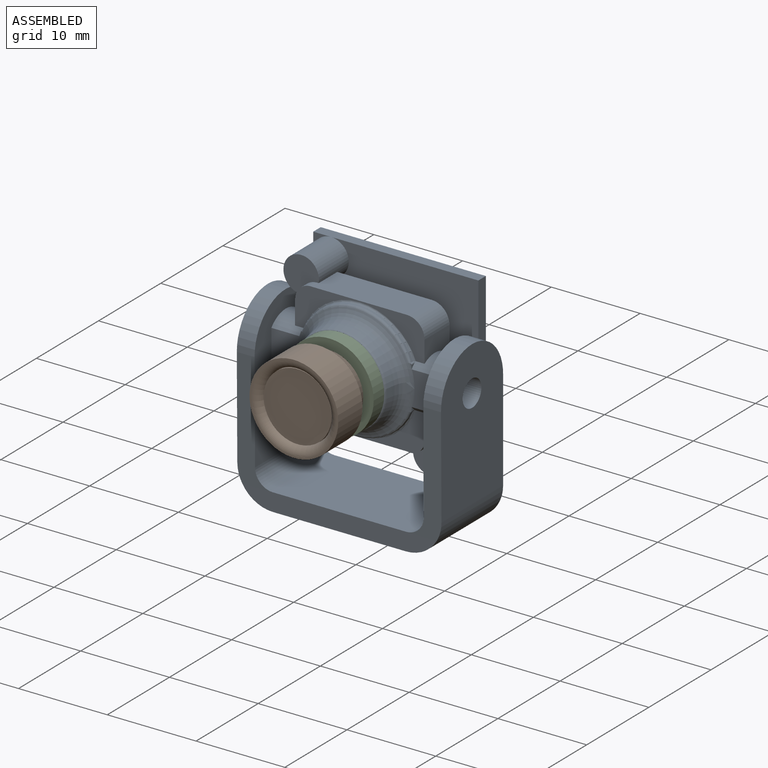
[diagram: assembled view]
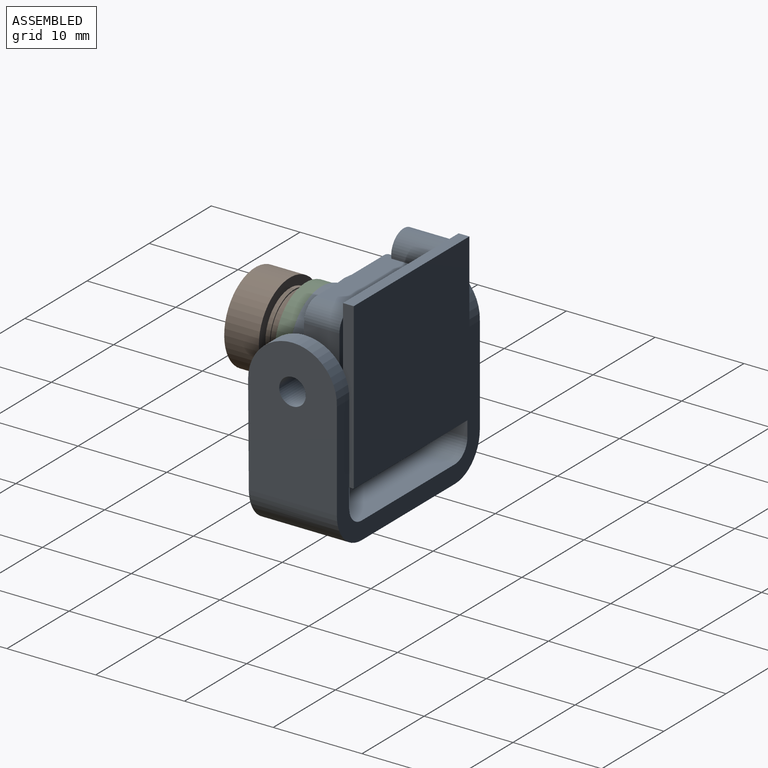
[diagram: assembled view, second angle]
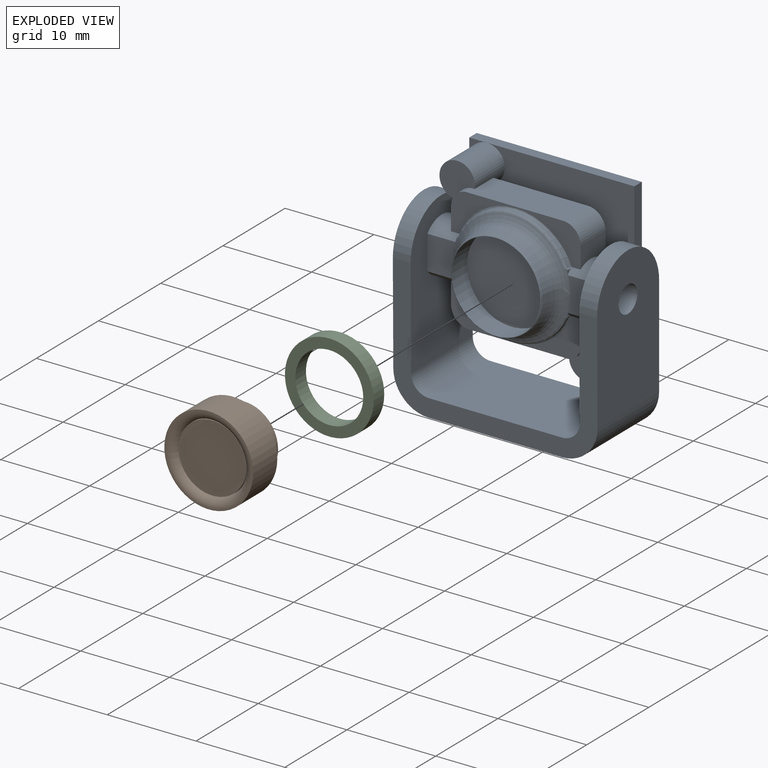
[diagram: exploded view]
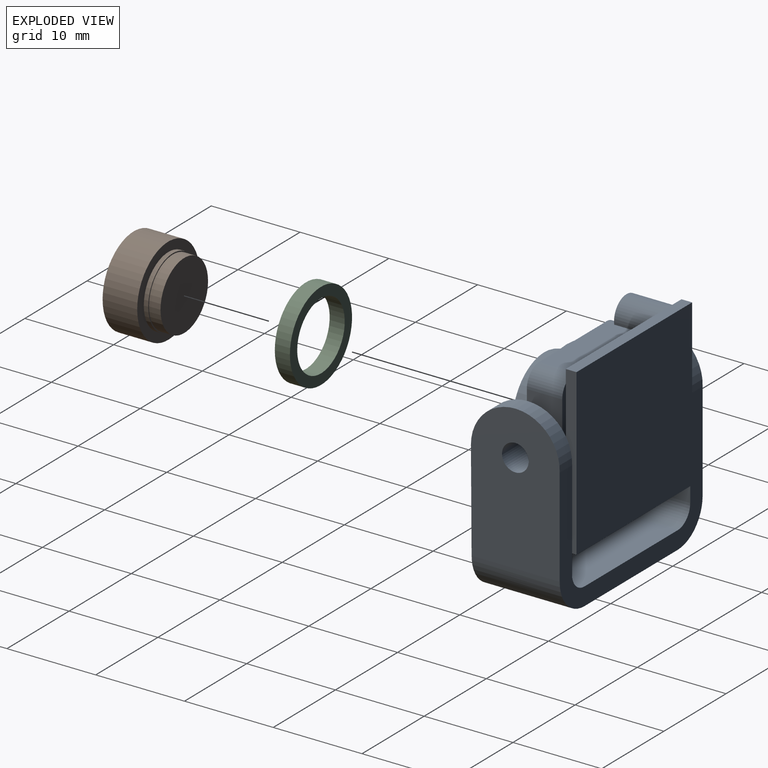
[diagram: exploded view, second angle]
ASSEMBLY  parts=3 mates=2
PART A: 93 faces, bbox 23x10.4x24.6 mm
  f0: cylinder r=1.6mm len=1.94mm, axis (0,-1,0), area 2.9mm2, adj f32,f51,f58,f62
  f1: cylinder r=1.76mm len=1.94mm, axis (0,-1,0), area 2.8mm2, adj f48,f56,f61,f68
  f2: cylinder r=0.15mm len=0.62mm, axis (0,-1,0), area 0.1mm2, adj f3,f4,f9,f30,f52
  f3: plane 0.63x0.28mm, normal (0,0,-1), area 0mm2, adj f2,f4,f8,f30,f36,f46
  f4: plane 0.45x0.17mm, normal (0,-1,0), area 0mm2, adj f2,f3,f8,f52
  f5: cylinder r=0.15mm len=0.62mm, axis (0,1,0), area 0.1mm2, adj f7,f10,f11,f16,f33
  f6: plane 1.03x0.01mm, normal (0,0,1), area 0mm2, adj f15,f16,f33,f48
  f7: plane 0.63x0.28mm, normal (0,0,1), area 0mm2, adj f5,f8,f11,f33,f34,f35
  f8: revolved ~13.25x13.25mm, area 108.2mm2, adj f3,f4,f7,f9,f10,f11,f12,f16
  f9: cylinder r=3mm len=3.28mm, axis (-1,0,0), area 6.6mm2, adj f2,f8,f12,f13,f14,f20,f30,f31
  f10: plane 0.45x0.44mm, normal (1,0,0), area 0.1mm2, adj f5,f8,f11,f16
  f11: plane 0.45x0.17mm, normal (0,-1,0), area 0mm2, adj f5,f7,f8,f10
  f12: plane 3.84x3.16mm, normal (0,-1,0), area 11.4mm2, adj f8,f9,f16,f69
  f13: plane 0.01x0.01mm, normal (-1,0,0), area 0mm2, adj f9,f20,f32
  f14: plane 3.99x3.08mm, normal (1,0,0), area 8.8mm2, adj f9,f18,f31,f32,f50,f51
  f15: plane 0.01x0.01mm, normal (-1,0,0), area 0mm2, adj f6,f16,f48
  f16: cylinder r=3mm len=3.28mm, axis (-1,0,0), area 6.6mm2, adj f5,f6,f8,f10,f12,f15,f19,f33
  f17: cylinder r=3mm len=2.33mm, axis (-1,0,0), area 5.9mm2, adj f19,f50,f53,f69
  f18: cylinder r=3mm len=2.33mm, axis (-1,0,0), area 5.9mm2, adj f14,f31,f50,f69
  f19: plane 2.2x0.04mm, normal (0,0,1), area 0.1mm2, adj f16,f17,f53,f69
  f20: plane 1.03x0.01mm, normal (0,0,-1), area 0mm2, adj f9,f13,f30,f32
  f21: cylinder r=1.5mm len=23mm, axis (1,0,0), area 216.8mm2, adj f73,f77
  f22: plane 0.58x0.44mm, normal (0,1,0), area 0.2mm2, adj f8,f27,f29,f45,f67
  f23: plane 0.58x0.44mm, normal (0,1,0), area 0.2mm2, adj f8,f25,f26,f38,f44
  f24: plane 1.03x0.01mm, normal (0,0,-1), area 0mm2, adj f26,f30,f32,f37
  f25: plane 0.67x0.4mm, normal (0,0,1), area 0.2mm2, adj f23,f26,f30,f36,f38,f46
  f26: cylinder r=3mm len=3.6mm, axis (1,0,0), area 7mm2, adj f23,f24,f25,f37,f38,f43,f47,f65
  f27: plane 0.67x0.4mm, normal (0,0,-1), area 0.2mm2, adj f22,f29,f33,f34,f35,f67
  f28: plane 1.03x0.01mm, normal (0,0,1), area 0mm2, adj f29,f33,f39,f48
  f29: cylinder r=3mm len=3.6mm, axis (1,0,0), area 7mm2, adj f22,f27,f28,f39,f40,f47,f66,f67
  f30: torus R=6.83mm, axis (0,-1,0), area 5mm2, adj f2,f3,f9,f20,f24,f25,f32,f46
  f31: plane 2.2x0.04mm, normal (0,0,-1), area 0.1mm2, adj f9,f14,f18,f69
  f32: plane 14.6x4.49mm, normal (0,-1,0), area 23.8mm2, adj f0,f13,f14,f20,f24,f30,f37,f51
  f33: torus R=6.83mm, axis (0,-1,0), area 5mm2, adj f5,f6,f7,f16,f27,f28,f34,f48
  f34: cylinder r=6.62mm len=12.27mm, axis (0,-1,0), area 3.6mm2, adj f7,f27,f33,f35
  f35: torus R=6.33mm, axis (0,1,0), area 5.8mm2, adj f7,f8,f27,f34,f45
  f36: torus R=6.33mm, axis (0,1,0), area 5.8mm2, adj f3,f8,f25,f44,f46
  f37: plane 0.01x0.01mm, normal (1,0,0), area 0mm2, adj f24,f26,f32
  f38: plane 0.65x0.58mm, normal (-1,0,0), area 0.2mm2, adj f23,f25,f26
  f39: plane 0.01x0.01mm, normal (1,0,0), area 0mm2, adj f28,f29,f48
  f40: plane 3.99x3.08mm, normal (-1,0,0), area 8.8mm2, adj f29,f42,f48,f50,f66,f68
  f41: cylinder r=3mm len=2.33mm, axis (1,0,0), area 5.9mm2, adj f43,f50,f65,f76
  f42: cylinder r=3mm len=2.33mm, axis (1,0,0), area 5.9mm2, adj f40,f50,f66,f76
  f43: plane 2.2x0.04mm, normal (0,0,-1), area 0.1mm2, adj f26,f41,f65,f76
  f44: plane 0.23x0.06mm, normal (0,0,-1), area 0mm2, adj f8,f23,f36
  f45: plane 0.23x0.06mm, normal (0,0,1), area 0mm2, adj f8,f22,f35
  f46: cylinder r=6.62mm len=12.27mm, axis (0,-1,0), area 3.6mm2, adj f3,f25,f30,f36
  f47: plane 3.84x3.16mm, normal (0,-1,0), area 11.4mm2, adj f8,f26,f29,f76
  f48: plane 14.6x4.46mm, normal (0,-1,0), area 23.6mm2, adj f1,f6,f15,f28,f33,f39,f40,f53
  f49: cylinder r=5mm len=10mm, axis (0,-1,0), area 78.5mm2, adj f8,f57
  f50: plane 19x13.9mm, normal (0,1,0), area 212.8mm2, adj f14,f17,f18,f40,f41,f42,f51,f53
  f51: cylinder r=2mm len=3.99mm, axis (0,-1,0), area 1.4mm2, adj f0,f14,f32,f50,f64
  f52: plane 0.45x0.44mm, normal (1,0,0), area 0.1mm2, adj f2,f4,f8,f9
  f53: plane 3.99x3.08mm, normal (1,0,0), area 8.8mm2, adj f16,f17,f19,f48,f50,f54
  f54: cylinder r=2mm len=3.99mm, axis (0,-1,0), area 12.5mm2, adj f48,f50,f53,f55
  f55: plane 10.6x3.99mm, normal (0,0,1), area 42.3mm2, adj f48,f50,f54,f56
  f56: cylinder r=2mm len=3.99mm, axis (0,-1,0), area 0.1mm2, adj f1,f48,f50,f55,f63
  f57: plane 10x10mm, normal (0,-1,0), area 78.5mm2, adj f49
  f58: cylinder r=2mm len=3.99mm, axis (0,-1,0), area 0.1mm2, adj f0,f32,f50,f59,f64
  f59: plane 10.6x3.99mm, normal (0,0,-1), area 42.3mm2, adj f32,f50,f58,f60
  f60: cylinder r=2mm len=3.99mm, axis (0,-1,0), area 12.5mm2, adj f32,f50,f59,f65
  f61: plane 4x4mm, normal (0,-1,0), area 10.8mm2, adj f1,f63
  f62: plane 4x4mm, normal (0,-1,0), area 10.7mm2, adj f0,f64
  f63: cylinder r=2mm len=4.8mm, axis (0,-1,0), area 52.1mm2, adj f50,f56,f61,f68,f85,f87
  f64: cylinder r=2mm len=4.8mm, axis (0,-1,0), area 52.1mm2, adj f50,f51,f58,f62,f86,f87
  f65: plane 3.99x3.08mm, normal (-1,0,0), area 8.8mm2, adj f26,f32,f41,f43,f50,f60
  f66: plane 2.2x0.04mm, normal (0,0,1), area 0.1mm2, adj f29,f40,f42,f76
  f67: plane 0.65x0.58mm, normal (-1,0,0), area 0.2mm2, adj f22,f27,f29
  f68: cylinder r=2mm len=3.99mm, axis (0,-1,0), area 1.4mm2, adj f1,f40,f48,f50,f63
  f69: plane 16.3x10mm, normal (-1,0,0), area 127mm2, adj f9,f12,f16,f17,f18,f19,f31,f50
  f70: cylinder r=5mm len=10mm, axis (-1,0,0), area 31.9mm2, adj f69,f71,f72,f73
  f71: plane 13.27x4.01mm, normal (0,-1,-0.01), area 27mm2, adj f69,f70,f73,f79,f82,f84
  f72: plane 23x15.11mm, normal (0,1,0), area 93.3mm2, adj f69,f70,f73,f74,f76,f77,f78,f80
  f73: plane 16.3x10mm, normal (1,0,0), area 144.7mm2, adj f21,f70,f71,f72,f82
  f74: cylinder r=5mm len=10mm, axis (-1,0,0), area 31.9mm2, adj f72,f75,f76,f77
  f75: plane 13.27x4.01mm, normal (0,-1,-0.01), area 27mm2, adj f74,f76,f77,f79,f81,f83
  f76: plane 16.3x10mm, normal (1,0,0), area 127mm2, adj f26,f29,f41,f42,f43,f47,f50,f66
  f77: plane 16.3x10mm, normal (-1,0,0), area 144.7mm2, adj f21,f72,f74,f75,f81
  f78: plane 15x9.91mm, normal (0,0,1), area 148.6mm2, adj f72,f79,f83,f84
  f79: plane 21.93x2mm, normal (0,-1,0), area 39.8mm2, adj f71,f75,f78,f80,f81,f82
  f80: plane 15x9.91mm, normal (0,0,-1), area 148.6mm2, adj f72,f79,f81,f82
  f81: cylinder r=4mm len=9.92mm, axis (0,1,0), area 62.3mm2, adj f72,f75,f77,f79,f80
  f82: cylinder r=4mm len=9.92mm, axis (0,1,0), area 62.3mm2, adj f71,f72,f73,f79,f80
  f83: cylinder r=2mm len=9.92mm, axis (0,1,0), area 31.1mm2, adj f72,f75,f76,f78
  f84: cylinder r=2mm len=9.92mm, axis (0,-1,0), area 31.1mm2, adj f69,f71,f72,f78
  f85: plane 2x2mm, normal (0,-1,0), area 0.9mm2, adj f63,f88,f89
  f86: plane 2x2mm, normal (0,-1,0), area 0.9mm2, adj f64,f90,f91
  f87: plane 18.6x18.6mm, normal (0,-1,0), area 319.1mm2, adj f63,f64,f88,f89,f90,f91
  f88: plane 18.6x1.2mm, normal (-1,0,0), area 22.3mm2, adj f85,f87,f89,f91,f92
  f89: plane 18.6x1.2mm, normal (0,0,1), area 22.3mm2, adj f85,f87,f88,f90,f92
  f90: plane 18.6x1.2mm, normal (1,0,0), area 22.3mm2, adj f86,f87,f89,f91,f92
  f91: plane 18.6x1.2mm, normal (0,0,-1), area 22.3mm2, adj f86,f87,f88,f90,f92
  f92: plane 18.6x18.6mm, normal (0,1,0), area 346mm2, adj f88,f89,f90,f91
PART B: 10 faces, bbox 12x5.7x12 mm
  f0: cylinder r=3.94mm len=7.89mm, axis (0,-1,0), area 12.4mm2, adj f1,f4
  f1: plane 7.89x7.89mm, normal (0,1,0), area 2.9mm2, adj f0,f2
  f2: cylinder r=3.82mm len=7.65mm, axis (0,1,0), area 31.2mm2, adj f1,f3
  f3: plane 7.65x7.65mm, normal (0,1,0), area 46mm2, adj f2
  f4: plane 10x10mm, normal (0,1,0), area 29.7mm2, adj f0,f7
  f5: torus R=4.83mm, axis (0,1,0), area 41.3mm2, adj f6,f8
  f6: plane 10x10mm, normal (0,-1,0), area 5.4mm2, adj f5,f7
  f7: cylinder r=5mm len=10mm, axis (0,-1,0), area 122.5mm2, adj f4,f6
  f8: cylinder r=3.82mm len=7.65mm, axis (0,-1,0), area 9.6mm2, adj f5,f9
  f9: plane 7.65x7.65mm, normal (0,-1,0), area 46mm2, adj f8
PART C: 4 faces, bbox 10x1.7x10 mm
  f0: plane 10x10mm, normal (0,1,0), area 32.6mm2, adj f1,f2
  f1: cylinder r=5mm len=10mm, axis (0,-1,0), area 53.4mm2, adj f0,f3
  f2: cylinder r=3.82mm len=7.65mm, axis (0,-1,0), area 40.9mm2, adj f0,f3
  f3: plane 10x10mm, normal (0,-1,0), area 32.6mm2, adj f1,f2
PLACE A t=(-43.97,-45.7,41.69)mm
PLACE B t=(-43.97,-45.7,41.69)mm
PLACE C t=(-43.97,-45.7,41.69)mm
MATE fastened C.f1 <-> B.f0  axis (0,-1,0) through (-34.67,-57.6,50.99)mm
MATE fastened C.f1 <-> A.f35  axis (0,1,0) through (-34.67,-55.9,50.99)mm
